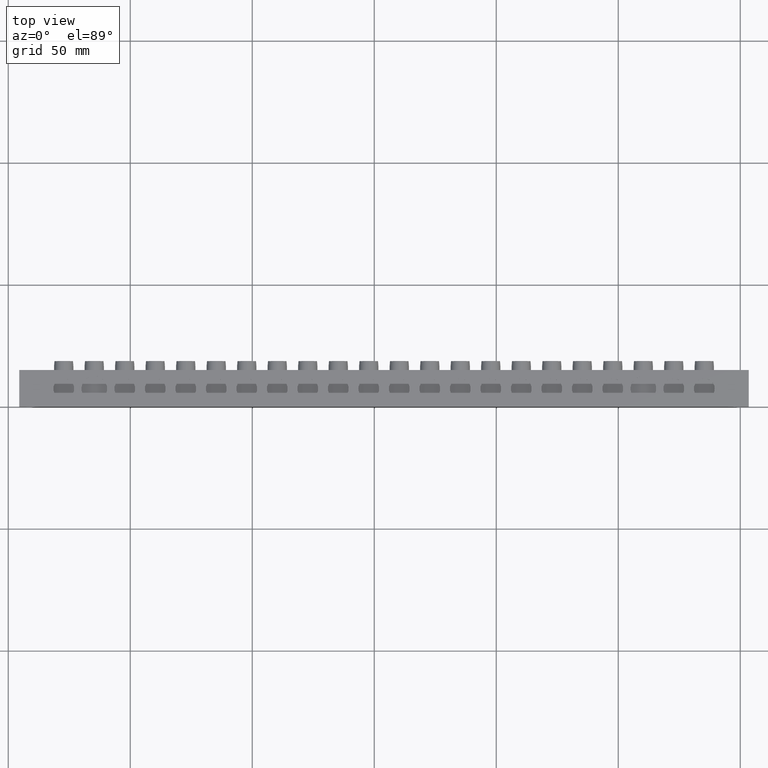
[diagram: clean part render]
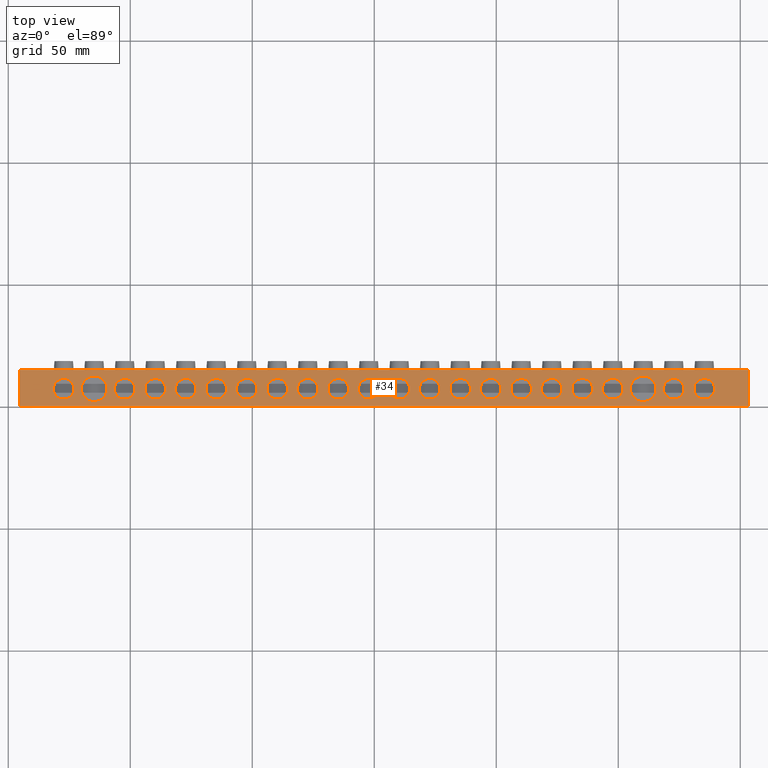
[diagram: same view with one face highlighted and labeled with its STEP entity id]
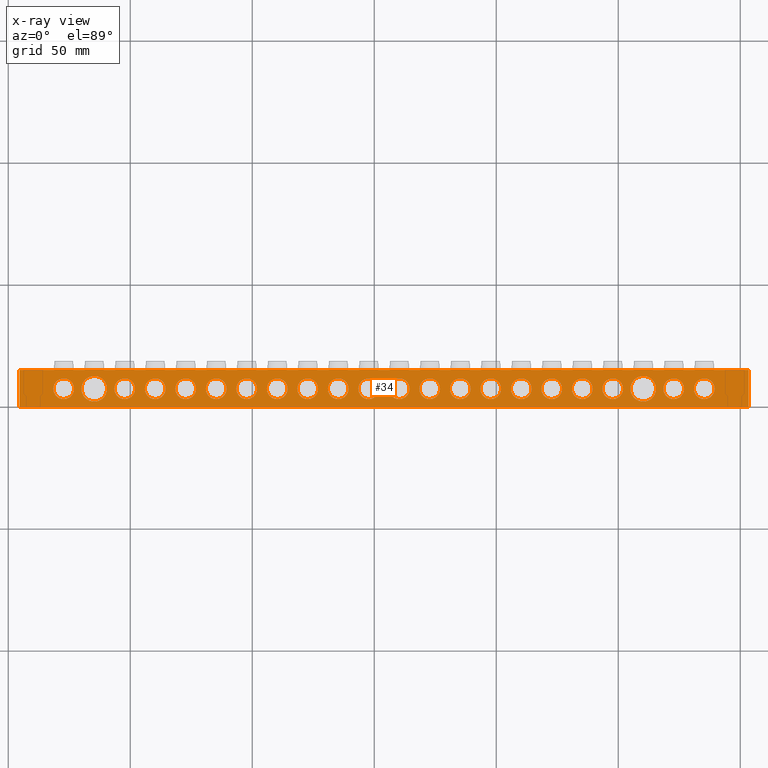
[diagram: x-ray of the same camera — body ghosted, the highlighted face saturated]
A machine part, top view. The second image highlights one B-rep face of the part: STEP entity #34.
The next image is the same camera in x-ray: the body ghosted, the highlighted face saturated — about 0% of this face is hidden behind the body in this view.
In plain terms, the highlighted planar face has unit normal (0, 0, -1).
Its self-contained STEP definition (entity closure, byte-faithful):
#34 = ADVANCED_FACE ( 'NONE', ( #3046, #3084, #3087, #3070, #3091, #3088, #3056, #3094, #3054, #3057, #3079, #3072, #3075, #3043, #3081, #3083, #3071, #3044, #3073, #3077, #3058, #3090, #3047 ), #3049, .F. ) ;
#108 = VERTEX_POINT ( 'NONE', #3121 ) ;
#130 = VERTEX_POINT ( 'NONE', #3153 ) ;
#135 = VERTEX_POINT ( 'NONE', #3137 ) ;
#136 = VERTEX_POINT ( 'NONE', #3112 ) ;
#165 = VERTEX_POINT ( 'NONE', #3124 ) ;
#169 = VERTEX_POINT ( 'NONE', #3100 ) ;
#173 = VERTEX_POINT ( 'NONE', #3104 ) ;
#174 = VERTEX_POINT ( 'NONE', #3139 ) ;
#177 = VERTEX_POINT ( 'NONE', #3106 ) ;
#181 = VERTEX_POINT ( 'NONE', #3125 ) ;
#182 = VERTEX_POINT ( 'NONE', #3103 ) ;
#183 = VERTEX_POINT ( 'NONE', #3127 ) ;
#184 = VERTEX_POINT ( 'NONE', #3131 ) ;
#188 = VERTEX_POINT ( 'NONE', #3115 ) ;
#192 = VERTEX_POINT ( 'NONE', #3107 ) ;
#195 = VERTEX_POINT ( 'NONE', #3132 ) ;
#204 = VERTEX_POINT ( 'NONE', #3133 ) ;
#207 = VERTEX_POINT ( 'NONE', #3194 ) ;
#212 = VERTEX_POINT ( 'NONE', #3178 ) ;
#214 = VERTEX_POINT ( 'NONE', #3186 ) ;
#219 = VERTEX_POINT ( 'NONE', #3205 ) ;
#221 = VERTEX_POINT ( 'NONE', #3196 ) ;
#550 = ORIENTED_EDGE ( 'NONE', *, *, #12116, .F. ) ;
#551 = ORIENTED_EDGE ( 'NONE', *, *, #12144, .F. ) ;
#552 = ORIENTED_EDGE ( 'NONE', *, *, #4015, .F. ) ;
#553 = ORIENTED_EDGE ( 'NONE', *, *, #12107, .F. ) ;
#555 = ORIENTED_EDGE ( 'NONE', *, *, #8539, .F. ) ;
#556 = ORIENTED_EDGE ( 'NONE', *, *, #12140, .F. ) ;
#557 = ORIENTED_EDGE ( 'NONE', *, *, #12118, .F. ) ;
#558 = ORIENTED_EDGE ( 'NONE', *, *, #8545, .F. ) ;
#559 = ORIENTED_EDGE ( 'NONE', *, *, #8568, .F. ) ;
#561 = ORIENTED_EDGE ( 'NONE', *, *, #3902, .F. ) ;
#563 = ORIENTED_EDGE ( 'NONE', *, *, #3934, .F. ) ;
#564 = ORIENTED_EDGE ( 'NONE', *, *, #12131, .F. ) ;
#565 = ORIENTED_EDGE ( 'NONE', *, *, #3994, .F. ) ;
#569 = ORIENTED_EDGE ( 'NONE', *, *, #4001, .F. ) ;
#570 = ORIENTED_EDGE ( 'NONE', *, *, #12110, .F. ) ;
#573 = ORIENTED_EDGE ( 'NONE', *, *, #3905, .F. ) ;
#574 = ORIENTED_EDGE ( 'NONE', *, *, #3911, .F. ) ;
#575 = ORIENTED_EDGE ( 'NONE', *, *, #3986, .F. ) ;
#576 = ORIENTED_EDGE ( 'NONE', *, *, #8540, .F. ) ;
#577 = ORIENTED_EDGE ( 'NONE', *, *, #12108, .F. ) ;
#579 = ORIENTED_EDGE ( 'NONE', *, *, #12124, .F. ) ;
#580 = ORIENTED_EDGE ( 'NONE', *, *, #3917, .F. ) ;
#582 = ORIENTED_EDGE ( 'NONE', *, *, #3981, .F. ) ;
#583 = ORIENTED_EDGE ( 'NONE', *, *, #12156, .F. ) ;
#584 = ORIENTED_EDGE ( 'NONE', *, *, #3896, .F. ) ;
#585 = ORIENTED_EDGE ( 'NONE', *, *, #8574, .F. ) ;
#586 = ORIENTED_EDGE ( 'NONE', *, *, #3995, .F. ) ;
#587 = ORIENTED_EDGE ( 'NONE', *, *, #8569, .F. ) ;
#588 = ORIENTED_EDGE ( 'NONE', *, *, #8531, .F. ) ;
#589 = ORIENTED_EDGE ( 'NONE', *, *, #8549, .F. ) ;
#591 = ORIENTED_EDGE ( 'NONE', *, *, #8553, .F. ) ;
#592 = ORIENTED_EDGE ( 'NONE', *, *, #12109, .F. ) ;
#594 = ORIENTED_EDGE ( 'NONE', *, *, #3969, .F. ) ;
#597 = ORIENTED_EDGE ( 'NONE', *, *, #3932, .F. ) ;
#598 = ORIENTED_EDGE ( 'NONE', *, *, #8571, .F. ) ;
#599 = ORIENTED_EDGE ( 'NONE', *, *, #3903, .F. ) ;
#600 = ORIENTED_EDGE ( 'NONE', *, *, #12127, .F. ) ;
#601 = ORIENTED_EDGE ( 'NONE', *, *, #3985, .F. ) ;
#602 = ORIENTED_EDGE ( 'NONE', *, *, #3912, .F. ) ;
#605 = ORIENTED_EDGE ( 'NONE', *, *, #8520, .F. ) ;
#606 = ORIENTED_EDGE ( 'NONE', *, *, #3915, .F. ) ;
#608 = ORIENTED_EDGE ( 'NONE', *, *, #12126, .F. ) ;
#609 = ORIENTED_EDGE ( 'NONE', *, *, #3956, .F. ) ;
#610 = ORIENTED_EDGE ( 'NONE', *, *, #12106, .F. ) ;
#611 = ORIENTED_EDGE ( 'NONE', *, *, #8528, .F. ) ;
#613 = ORIENTED_EDGE ( 'NONE', *, *, #3914, .F. ) ;
#631 = ORIENTED_EDGE ( 'NONE', *, *, #4014, .F. ) ;
#658 = ORIENTED_EDGE ( 'NONE', *, *, #4023, .F. ) ;
#1613 = AXIS2_PLACEMENT_3D ( 'NONE', #9318, #9326, #9323 ) ;
#1614 = AXIS2_PLACEMENT_3D ( 'NONE', #9322, #9308, #9297 ) ;
#1653 = CIRCLE ( 'NONE', #1613, 4.250000000000003600 ) ;
#1657 = CIRCLE ( 'NONE', #1614, 4.250000000000003600 ) ;
#1674 = CIRCLE ( 'NONE', #1709, 4.250000000000003600 ) ;
#1677 = AXIS2_PLACEMENT_3D ( 'NONE', #9390, #9391, #9380 ) ;
#1686 = CIRCLE ( 'NONE', #1711, 4.250000000000003600 ) ;
#1689 = CIRCLE ( 'NONE', #1692, 4.250000000000003600 ) ;
#1692 = AXIS2_PLACEMENT_3D ( 'NONE', #9373, #9353, #9363 ) ;
#1695 = AXIS2_PLACEMENT_3D ( 'NONE', #9412, #9384, #9414 ) ;
#1701 = CIRCLE ( 'NONE', #1677, 4.250000000000003600 ) ;
#1709 = AXIS2_PLACEMENT_3D ( 'NONE', #9361, #9347, #9348 ) ;
#1711 = AXIS2_PLACEMENT_3D ( 'NONE', #9376, #9338, #9364 ) ;
#1713 = CIRCLE ( 'NONE', #1726, 4.250000000000017800 ) ;
#1726 = AXIS2_PLACEMENT_3D ( 'NONE', #9394, #9404, #9398 ) ;
#1727 = CIRCLE ( 'NONE', #1695, 5.249999999999976900 ) ;
#1733 = AXIS2_PLACEMENT_3D ( 'NONE', #9479, #9486, #9487 ) ;
#1739 = CIRCLE ( 'NONE', #1740, 4.250000000000003600 ) ;
#1740 = AXIS2_PLACEMENT_3D ( 'NONE', #9493, #9468, #9476 ) ;
#1749 = AXIS2_PLACEMENT_3D ( 'NONE', #9478, #9471, #9483 ) ;
#1765 = CIRCLE ( 'NONE', #1749, 4.250000000000003600 ) ;
#1768 = CIRCLE ( 'NONE', #1733, 4.250000000000003600 ) ;
#1772 = CIRCLE ( 'NONE', #1777, 4.250000000000003600 ) ;
#1777 = AXIS2_PLACEMENT_3D ( 'NONE', #9482, #9481, #9475 ) ;
#1800 = AXIS2_PLACEMENT_3D ( 'NONE', #8694, #8686, #8687 ) ;
#1801 = CIRCLE ( 'NONE', #1819, 4.250000000000003600 ) ;
#1808 = AXIS2_PLACEMENT_3D ( 'NONE', #8688, #8675, #8663 ) ;
#1810 = AXIS2_PLACEMENT_3D ( 'NONE', #8673, #8670, #8681 ) ;
#1815 = VECTOR ( 'NONE', #8739, 1000.000000000000000 ) ;
#1819 = AXIS2_PLACEMENT_3D ( 'NONE', #8737, #8707, #8709 ) ;
#1822 = CIRCLE ( 'NONE', #1837, 4.250000000000032000 ) ;
#1824 = CIRCLE ( 'NONE', #1810, 4.250000000000003600 ) ;
#1827 = CIRCLE ( 'NONE', #1843, 5.249999999999997300 ) ;
#1830 = AXIS2_PLACEMENT_3D ( 'NONE', #8659, #8667, #8671 ) ;
#1833 = CIRCLE ( 'NONE', #1830, 4.250000000000003600 ) ;
#1837 = AXIS2_PLACEMENT_3D ( 'NONE', #8678, #8676, #8662 ) ;
#1840 = CIRCLE ( 'NONE', #1800, 4.250000000000003600 ) ;
#1842 = CIRCLE ( 'NONE', #1808, 4.250000000000003600 ) ;
#1843 = AXIS2_PLACEMENT_3D ( 'NONE', #8674, #8679, #8677 ) ;
#1845 = VECTOR ( 'NONE', #8661, 1000.000000000000000 ) ;
#1848 = VECTOR ( 'NONE', #8708, 1000.000000000000000 ) ;
#1849 = VECTOR ( 'NONE', #8701, 1000.000000000000000 ) ;
#1866 = CIRCLE ( 'NONE', #1874, 4.250000000000003600 ) ;
#1870 = AXIS2_PLACEMENT_3D ( 'NONE', #8744, #8750, #8745 ) ;
#1874 = AXIS2_PLACEMENT_3D ( 'NONE', #8823, #8794, #8791 ) ;
#1879 = CIRCLE ( 'NONE', #1905, 4.249999999999976000 ) ;
#1905 = AXIS2_PLACEMENT_3D ( 'NONE', #8768, #8782, #8762 ) ;
#1911 = CIRCLE ( 'NONE', #1870, 4.250000000000032000 ) ;
#2454 = VERTEX_POINT ( 'NONE', #13983 ) ;
#2502 = VERTEX_POINT ( 'NONE', #14015 ) ;
#2508 = VERTEX_POINT ( 'NONE', #14023 ) ;
#2515 = VERTEX_POINT ( 'NONE', #14070 ) ;
#2525 = VERTEX_POINT ( 'NONE', #14066 ) ;
#2539 = VERTEX_POINT ( 'NONE', #14041 ) ;
#2546 = VERTEX_POINT ( 'NONE', #14056 ) ;
#2553 = VERTEX_POINT ( 'NONE', #14085 ) ;
#2554 = VERTEX_POINT ( 'NONE', #14071 ) ;
#2555 = VERTEX_POINT ( 'NONE', #14077 ) ;
#2559 = VERTEX_POINT ( 'NONE', #14030 ) ;
#2828 = VERTEX_POINT ( 'NONE', #14101 ) ;
#2849 = VERTEX_POINT ( 'NONE', #14194 ) ;
#2850 = VERTEX_POINT ( 'NONE', #14090 ) ;
#2851 = VERTEX_POINT ( 'NONE', #14201 ) ;
#2853 = VERTEX_POINT ( 'NONE', #14115 ) ;
#2856 = VERTEX_POINT ( 'NONE', #14198 ) ;
#2858 = VERTEX_POINT ( 'NONE', #14186 ) ;
#2862 = VERTEX_POINT ( 'NONE', #14163 ) ;
#2865 = VERTEX_POINT ( 'NONE', #14177 ) ;
#2866 = VERTEX_POINT ( 'NONE', #14179 ) ;
#2867 = VERTEX_POINT ( 'NONE', #14174 ) ;
#3043 = FACE_BOUND ( 'NONE', #13182, .T. ) ;
#3044 = FACE_BOUND ( 'NONE', #13183, .T. ) ;
#3045 = DIRECTION ( 'NONE',  ( -1.000000000000000000, 0.0000000000000000000, -0.0000000000000000000 ) ) ;
#3046 = FACE_BOUND ( 'NONE', #13148, .T. ) ;
#3047 = FACE_OUTER_BOUND ( 'NONE', #13219, .T. ) ;
#3049 = PLANE ( 'NONE',  #7045 ) ;
#3054 = FACE_BOUND ( 'NONE', #13217, .T. ) ;
#3056 = FACE_BOUND ( 'NONE', #13137, .T. ) ;
#3057 = FACE_BOUND ( 'NONE', #13186, .T. ) ;
#3058 = FACE_BOUND ( 'NONE', #13189, .T. ) ;
#3070 = FACE_BOUND ( 'NONE', #13142, .T. ) ;
#3071 = FACE_BOUND ( 'NONE', #13200, .T. ) ;
#3072 = FACE_BOUND ( 'NONE', #13180, .T. ) ;
#3073 = FACE_BOUND ( 'NONE', #13190, .T. ) ;
#3075 = FACE_BOUND ( 'NONE', #13204, .T. ) ;
#3077 = FACE_BOUND ( 'NONE', #13198, .T. ) ;
#3079 = FACE_BOUND ( 'NONE', #13213, .T. ) ;
#3081 = FACE_BOUND ( 'NONE', #13208, .T. ) ;
#3083 = FACE_BOUND ( 'NONE', #13224, .T. ) ;
#3084 = FACE_BOUND ( 'NONE', #13133, .T. ) ;
#3085 = CARTESIAN_POINT ( 'NONE',  ( 0.0000000000000000000, 15.00000000000000000, 0.0000000000000000000 ) ) ;
#3087 = FACE_BOUND ( 'NONE', #13121, .T. ) ;
#3088 = FACE_BOUND ( 'NONE', #13165, .T. ) ;
#3090 = FACE_BOUND ( 'NONE', #13184, .T. ) ;
#3091 = FACE_BOUND ( 'NONE', #13130, .T. ) ;
#3092 = DIRECTION ( 'NONE',  ( 0.0000000000000000000, 0.0000000000000000000, -1.000000000000000000 ) ) ;
#3094 = FACE_BOUND ( 'NONE', #13145, .T. ) ;
#3100 = CARTESIAN_POINT ( 'NONE',  ( 64.49999999999994300, 7.299999999999939400, 0.0000000000000000000 ) ) ;
#3103 = CARTESIAN_POINT ( 'NONE',  ( 139.4999999999999400, 7.299999999999966100, 0.0000000000000000000 ) ) ;
#3104 = CARTESIAN_POINT ( 'NONE',  ( 18.49999999999999600, 7.299999999999999800, 0.0000000000000000000 ) ) ;
#3106 = CARTESIAN_POINT ( 'NONE',  ( 126.9999999999999700, 7.299999999999961600, 0.0000000000000000000 ) ) ;
#3107 = CARTESIAN_POINT ( 'NONE',  ( 101.9999999999999600, 7.299999999999954500, 0.0000000000000000000 ) ) ;
#3112 = CARTESIAN_POINT ( 'NONE',  ( 43.49999999999995700, 7.299999999999935900, 0.0000000000000000000 ) ) ;
#3115 = CARTESIAN_POINT ( 'NONE',  ( 155.9999999999999400, 7.299999999999975800, 0.0000000000000000000 ) ) ;
#3121 = CARTESIAN_POINT ( 'NONE',  ( 89.49999999999997200, 7.299999999999950100, 0.0000000000000000000 ) ) ;
#3124 = CARTESIAN_POINT ( 'NONE',  ( 105.9999999999999600, 7.299999999999958100, 0.0000000000000000000 ) ) ;
#3125 = CARTESIAN_POINT ( 'NONE',  ( 243.4999999999999400, 7.300000000000003400, 0.0000000000000000000 ) ) ;
#3127 = CARTESIAN_POINT ( 'NONE',  ( 164.4999999999999400, 7.299999999999975000, 0.0000000000000000000 ) ) ;
#3131 = CARTESIAN_POINT ( 'NONE',  ( 143.4999999999999400, 7.299999999999971400, 0.0000000000000000000 ) ) ;
#3132 = CARTESIAN_POINT ( 'NONE',  ( 80.99999999999995700, 7.299999999999951000, 0.0000000000000000000 ) ) ;
#3133 = CARTESIAN_POINT ( 'NONE',  ( 68.49999999999994300, 7.299999999999944800, 0.0000000000000000000 ) ) ;
#3137 = CARTESIAN_POINT ( 'NONE',  ( 55.99999999999993600, 7.299999999999940300, 0.0000000000000000000 ) ) ;
#3139 = CARTESIAN_POINT ( 'NONE',  ( 93.49999999999994300, 7.299999999999954500, 0.0000000000000000000 ) ) ;
#3153 = CARTESIAN_POINT ( 'NONE',  ( 114.4999999999999600, 7.299999999999957200, 0.0000000000000000000 ) ) ;
#3178 = CARTESIAN_POINT ( 'NONE',  ( 51.99999999999996400, 7.299999999999935000, 0.0000000000000000000 ) ) ;
#3186 = CARTESIAN_POINT ( 'NONE',  ( 118.4999999999999400, 7.299999999999962500, 0.0000000000000000000 ) ) ;
#3194 = CARTESIAN_POINT ( 'NONE',  ( 76.99999999999995700, 7.299999999999943900, 0.0000000000000000000 ) ) ;
#3196 = CARTESIAN_POINT ( 'NONE',  ( 151.9999999999999400, 7.299999999999970500, 0.0000000000000000000 ) ) ;
#3205 = CARTESIAN_POINT ( 'NONE',  ( 130.9999999999999400, 7.299999999999967000, 0.0000000000000000000 ) ) ;
#3896 = EDGE_CURVE ( 'NONE', #165, #130, #6566, .T. ) ;
#3902 = EDGE_CURVE ( 'NONE', #188, #183, #6612, .T. ) ;
#3903 = EDGE_CURVE ( 'NONE', #2856, #2849, #6642, .T. ) ;
#3905 = EDGE_CURVE ( 'NONE', #181, #2862, #6626, .T. ) ;
#3911 = EDGE_CURVE ( 'NONE', #219, #182, #6581, .T. ) ;
#3912 = EDGE_CURVE ( 'NONE', #135, #169, #6607, .T. ) ;
#3914 = EDGE_CURVE ( 'NONE', #136, #212, #6640, .T. ) ;
#3915 = EDGE_CURVE ( 'NONE', #204, #207, #6590, .T. ) ;
#3917 = EDGE_CURVE ( 'NONE', #214, #177, #6638, .T. ) ;
#3932 = EDGE_CURVE ( 'NONE', #2850, #2865, #6586, .T. ) ;
#3934 = EDGE_CURVE ( 'NONE', #195, #108, #6618, .T. ) ;
#3956 = EDGE_CURVE ( 'NONE', #174, #192, #6698, .T. ) ;
#3969 = EDGE_CURVE ( 'NONE', #2851, #2858, #6689, .T. ) ;
#3981 = EDGE_CURVE ( 'NONE', #2502, #2554, #6675, .T. ) ;
#3985 = EDGE_CURVE ( 'NONE', #2559, #2508, #6670, .T. ) ;
#3986 = EDGE_CURVE ( 'NONE', #2525, #2454, #6676, .T. ) ;
#3994 = EDGE_CURVE ( 'NONE', #184, #221, #6735, .T. ) ;
#3995 = EDGE_CURVE ( 'NONE', #173, #2553, #6739, .T. ) ;
#4001 = EDGE_CURVE ( 'NONE', #2515, #2546, #6705, .T. ) ;
#4014 = EDGE_CURVE ( 'NONE', #2828, #2866, #6711, .T. ) ;
#4015 = EDGE_CURVE ( 'NONE', #2867, #2853, #6724, .T. ) ;
#4023 = EDGE_CURVE ( 'NONE', #2539, #2555, #6712, .T. ) ;
#5500 = DIRECTION ( 'NONE',  ( 0.0000000000000000000, 0.0000000000000000000, 1.000000000000000000 ) ) ;
#6554 = AXIS2_PLACEMENT_3D ( 'NONE', #14696, #14699, #14704 ) ;
#6566 = CIRCLE ( 'NONE', #6554, 4.250000000000003600 ) ;
#6581 = CIRCLE ( 'NONE', #6633, 4.250000000000003600 ) ;
#6584 = AXIS2_PLACEMENT_3D ( 'NONE', #10758, #5500, #7532 ) ;
#6586 = CIRCLE ( 'NONE', #6584, 4.250000000000003600 ) ;
#6590 = CIRCLE ( 'NONE', #6635, 4.250000000000003600 ) ;
#6598 = AXIS2_PLACEMENT_3D ( 'NONE', #8649, #8650, #8652 ) ;
#6599 = AXIS2_PLACEMENT_3D ( 'NONE', #8586, #8583, #8589 ) ;
#6607 = CIRCLE ( 'NONE', #6598, 4.250000000000003600 ) ;
#6612 = CIRCLE ( 'NONE', #6643, 4.250000000000003600 ) ;
#6616 = AXIS2_PLACEMENT_3D ( 'NONE', #8575, #8578, #8579 ) ;
#6618 = CIRCLE ( 'NONE', #6624, 4.250000000000003600 ) ;
#6619 = AXIS2_PLACEMENT_3D ( 'NONE', #8637, #8617, #8620 ) ;
#6624 = AXIS2_PLACEMENT_3D ( 'NONE', #7554, #7543, #7509 ) ;
#6625 = AXIS2_PLACEMENT_3D ( 'NONE', #8635, #8640, #8630 ) ;
#6626 = CIRCLE ( 'NONE', #6625, 4.250000000000032000 ) ;
#6633 = AXIS2_PLACEMENT_3D ( 'NONE', #8656, #8657, #8648 ) ;
#6635 = AXIS2_PLACEMENT_3D ( 'NONE', #8580, #8577, #8581 ) ;
#6638 = CIRCLE ( 'NONE', #6599, 4.250000000000017800 ) ;
#6640 = CIRCLE ( 'NONE', #6616, 4.250000000000003600 ) ;
#6642 = CIRCLE ( 'NONE', #6619, 4.250000000000003600 ) ;
#6643 = AXIS2_PLACEMENT_3D ( 'NONE', #8628, #8641, #8624 ) ;
#6659 = AXIS2_PLACEMENT_3D ( 'NONE', #7660, #7673, #7654 ) ;
#6662 = AXIS2_PLACEMENT_3D ( 'NONE', #7566, #7558, #7587 ) ;
#6670 = CIRCLE ( 'NONE', #6671, 4.250000000000032000 ) ;
#6671 = AXIS2_PLACEMENT_3D ( 'NONE', #7646, #7657, #7641 ) ;
#6675 = CIRCLE ( 'NONE', #6659, 4.250000000000003600 ) ;
#6676 = CIRCLE ( 'NONE', #6733, 5.249999999999976900 ) ;
#6689 = CIRCLE ( 'NONE', #6692, 4.250000000000003600 ) ;
#6692 = AXIS2_PLACEMENT_3D ( 'NONE', #7630, #7600, #7624 ) ;
#6698 = CIRCLE ( 'NONE', #6662, 4.250000000000003600 ) ;
#6703 = AXIS2_PLACEMENT_3D ( 'NONE', #7689, #7696, #7701 ) ;
#6705 = CIRCLE ( 'NONE', #6737, 5.249999999999997300 ) ;
#6711 = CIRCLE ( 'NONE', #6723, 4.250000000000003600 ) ;
#6712 = CIRCLE ( 'NONE', #6718, 4.249999999999976000 ) ;
#6715 = AXIS2_PLACEMENT_3D ( 'NONE', #7798, #7778, #7800 ) ;
#6718 = AXIS2_PLACEMENT_3D ( 'NONE', #7772, #7805, #7796 ) ;
#6723 = AXIS2_PLACEMENT_3D ( 'NONE', #7783, #7773, #7795 ) ;
#6724 = CIRCLE ( 'NONE', #6715, 4.250000000000003600 ) ;
#6730 = AXIS2_PLACEMENT_3D ( 'NONE', #7684, #7699, #7719 ) ;
#6733 = AXIS2_PLACEMENT_3D ( 'NONE', #7640, #7648, #7650 ) ;
#6735 = CIRCLE ( 'NONE', #6703, 4.250000000000003600 ) ;
#6737 = AXIS2_PLACEMENT_3D ( 'NONE', #7728, #7742, #7760 ) ;
#6739 = CIRCLE ( 'NONE', #6730, 4.250000000000003600 ) ;
#7045 = AXIS2_PLACEMENT_3D ( 'NONE', #3085, #3092, #3045 ) ;
#7509 = DIRECTION ( 'NONE',  ( 1.000000000000000000, 0.0000000000000000000, 0.0000000000000000000 ) ) ;
#7532 = DIRECTION ( 'NONE',  ( 1.000000000000000000, 0.0000000000000000000, 0.0000000000000000000 ) ) ;
#7543 = DIRECTION ( 'NONE',  ( 0.0000000000000000000, 0.0000000000000000000, 1.000000000000000000 ) ) ;
#7554 = CARTESIAN_POINT ( 'NONE',  ( 85.24999999999997200, 7.299999999999950100, 0.0000000000000000000 ) ) ;
#7558 = DIRECTION ( 'NONE',  ( 0.0000000000000000000, 0.0000000000000000000, 1.000000000000000000 ) ) ;
#7566 = CARTESIAN_POINT ( 'NONE',  ( 97.74999999999994300, 7.299999999999954500, 0.0000000000000000000 ) ) ;
#7587 = DIRECTION ( 'NONE',  ( 1.000000000000000000, 0.0000000000000000000, 0.0000000000000000000 ) ) ;
#7600 = DIRECTION ( 'NONE',  ( 0.0000000000000000000, 0.0000000000000000000, 1.000000000000000000 ) ) ;
#7624 = DIRECTION ( 'NONE',  ( 1.000000000000000000, 0.0000000000000000000, 0.0000000000000000000 ) ) ;
#7630 = CARTESIAN_POINT ( 'NONE',  ( 210.2499999999999700, 7.299999999999992700, 0.0000000000000000000 ) ) ;
#7640 = CARTESIAN_POINT ( 'NONE',  ( 260.2500000000000000, 7.299999999999998900, 0.0000000000000000000 ) ) ;
#7641 = DIRECTION ( 'NONE',  ( 1.000000000000000000, 0.0000000000000000000, 0.0000000000000000000 ) ) ;
#7646 = CARTESIAN_POINT ( 'NONE',  ( 285.2500000000000000, 7.299999999999998900, 0.0000000000000000000 ) ) ;
#7648 = DIRECTION ( 'NONE',  ( -0.0000000000000000000, -0.0000000000000000000, 1.000000000000000000 ) ) ;
#7650 = DIRECTION ( 'NONE',  ( -1.000000000000000000, 0.0000000000000000000, 0.0000000000000000000 ) ) ;
#7654 = DIRECTION ( 'NONE',  ( 1.000000000000000000, 0.0000000000000000000, 0.0000000000000000000 ) ) ;
#7657 = DIRECTION ( 'NONE',  ( 0.0000000000000000000, 0.0000000000000000000, 1.000000000000000000 ) ) ;
#7660 = CARTESIAN_POINT ( 'NONE',  ( 235.2500000000000300, 7.300000000000001600, 0.0000000000000000000 ) ) ;
#7673 = DIRECTION ( 'NONE',  ( 0.0000000000000000000, 0.0000000000000000000, 1.000000000000000000 ) ) ;
#7684 = CARTESIAN_POINT ( 'NONE',  ( 22.75000000000000000, 7.299999999999998900, 0.0000000000000000000 ) ) ;
#7689 = CARTESIAN_POINT ( 'NONE',  ( 147.7499999999999400, 7.299999999999970500, 0.0000000000000000000 ) ) ;
#7696 = DIRECTION ( 'NONE',  ( 0.0000000000000000000, 0.0000000000000000000, 1.000000000000000000 ) ) ;
#7699 = DIRECTION ( 'NONE',  ( 0.0000000000000000000, 0.0000000000000000000, 1.000000000000000000 ) ) ;
#7701 = DIRECTION ( 'NONE',  ( 1.000000000000000000, 0.0000000000000000000, 0.0000000000000000000 ) ) ;
#7719 = DIRECTION ( 'NONE',  ( 1.000000000000000000, 0.0000000000000000000, 0.0000000000000000000 ) ) ;
#7728 = CARTESIAN_POINT ( 'NONE',  ( 35.25000000000000000, 7.299999999999998900, 0.0000000000000000000 ) ) ;
#7742 = DIRECTION ( 'NONE',  ( 0.0000000000000000000, 0.0000000000000000000, 1.000000000000000000 ) ) ;
#7760 = DIRECTION ( 'NONE',  ( 1.000000000000000000, 0.0000000000000000000, 0.0000000000000000000 ) ) ;
#7772 = CARTESIAN_POINT ( 'NONE',  ( 272.7500000000000000, 7.299999999999998900, 0.0000000000000000000 ) ) ;
#7773 = DIRECTION ( 'NONE',  ( 0.0000000000000000000, 0.0000000000000000000, 1.000000000000000000 ) ) ;
#7778 = DIRECTION ( 'NONE',  ( 0.0000000000000000000, 0.0000000000000000000, 1.000000000000000000 ) ) ;
#7783 = CARTESIAN_POINT ( 'NONE',  ( 172.7500000000000300, 7.299999999999979400, 0.0000000000000000000 ) ) ;
#7795 = DIRECTION ( 'NONE',  ( 1.000000000000000000, 0.0000000000000000000, 0.0000000000000000000 ) ) ;
#7796 = DIRECTION ( 'NONE',  ( -1.000000000000000000, 0.0000000000000000000, 0.0000000000000000000 ) ) ;
#7798 = CARTESIAN_POINT ( 'NONE',  ( 222.7499999999999400, 7.299999999999997200, 0.0000000000000000000 ) ) ;
#7800 = DIRECTION ( 'NONE',  ( 1.000000000000000000, 0.0000000000000000000, 0.0000000000000000000 ) ) ;
#7805 = DIRECTION ( 'NONE',  ( -0.0000000000000000000, -0.0000000000000000000, 1.000000000000000000 ) ) ;
#8520 = EDGE_CURVE ( 'NONE', #130, #165, #1653, .T. ) ;
#8528 = EDGE_CURVE ( 'NONE', #212, #136, #1657, .T. ) ;
#8531 = EDGE_CURVE ( 'NONE', #108, #195, #1674, .T. ) ;
#8539 = EDGE_CURVE ( 'NONE', #192, #174, #1689, .T. ) ;
#8540 = EDGE_CURVE ( 'NONE', #182, #219, #1686, .T. ) ;
#8545 = EDGE_CURVE ( 'NONE', #2865, #2850, #1701, .T. ) ;
#8549 = EDGE_CURVE ( 'NONE', #177, #214, #1713, .T. ) ;
#8553 = EDGE_CURVE ( 'NONE', #2454, #2525, #1727, .T. ) ;
#8568 = EDGE_CURVE ( 'NONE', #207, #204, #1768, .T. ) ;
#8569 = EDGE_CURVE ( 'NONE', #2853, #2867, #1772, .T. ) ;
#8571 = EDGE_CURVE ( 'NONE', #2554, #2502, #1739, .T. ) ;
#8574 = EDGE_CURVE ( 'NONE', #2849, #2856, #1765, .T. ) ;
#8575 = CARTESIAN_POINT ( 'NONE',  ( 47.74999999999995700, 7.299999999999935000, 0.0000000000000000000 ) ) ;
#8577 = DIRECTION ( 'NONE',  ( 0.0000000000000000000, 0.0000000000000000000, 1.000000000000000000 ) ) ;
#8578 = DIRECTION ( 'NONE',  ( 0.0000000000000000000, 0.0000000000000000000, 1.000000000000000000 ) ) ;
#8579 = DIRECTION ( 'NONE',  ( 1.000000000000000000, 0.0000000000000000000, 0.0000000000000000000 ) ) ;
#8580 = CARTESIAN_POINT ( 'NONE',  ( 72.74999999999995700, 7.299999999999943900, 0.0000000000000000000 ) ) ;
#8581 = DIRECTION ( 'NONE',  ( 1.000000000000000000, 0.0000000000000000000, 0.0000000000000000000 ) ) ;
#8583 = DIRECTION ( 'NONE',  ( 0.0000000000000000000, 0.0000000000000000000, 1.000000000000000000 ) ) ;
#8586 = CARTESIAN_POINT ( 'NONE',  ( 122.7499999999999600, 7.299999999999961600, 0.0000000000000000000 ) ) ;
#8589 = DIRECTION ( 'NONE',  ( 1.000000000000000000, 0.0000000000000000000, 0.0000000000000000000 ) ) ;
#8617 = DIRECTION ( 'NONE',  ( 0.0000000000000000000, 0.0000000000000000000, 1.000000000000000000 ) ) ;
#8620 = DIRECTION ( 'NONE',  ( 1.000000000000000000, 0.0000000000000000000, 0.0000000000000000000 ) ) ;
#8624 = DIRECTION ( 'NONE',  ( 1.000000000000000000, 0.0000000000000000000, 0.0000000000000000000 ) ) ;
#8628 = CARTESIAN_POINT ( 'NONE',  ( 160.2499999999999400, 7.299999999999975000, 0.0000000000000000000 ) ) ;
#8630 = DIRECTION ( 'NONE',  ( 1.000000000000000000, 0.0000000000000000000, 0.0000000000000000000 ) ) ;
#8635 = CARTESIAN_POINT ( 'NONE',  ( 247.7499999999999700, 7.300000000000002500, 0.0000000000000000000 ) ) ;
#8637 = CARTESIAN_POINT ( 'NONE',  ( 185.2499999999999700, 7.299999999999983800, 0.0000000000000000000 ) ) ;
#8640 = DIRECTION ( 'NONE',  ( 0.0000000000000000000, 0.0000000000000000000, 1.000000000000000000 ) ) ;
#8641 = DIRECTION ( 'NONE',  ( 0.0000000000000000000, 0.0000000000000000000, 1.000000000000000000 ) ) ;
#8648 = DIRECTION ( 'NONE',  ( 1.000000000000000000, 0.0000000000000000000, 0.0000000000000000000 ) ) ;
#8649 = CARTESIAN_POINT ( 'NONE',  ( 60.24999999999994300, 7.299999999999939400, 0.0000000000000000000 ) ) ;
#8650 = DIRECTION ( 'NONE',  ( 0.0000000000000000000, 0.0000000000000000000, 1.000000000000000000 ) ) ;
#8652 = DIRECTION ( 'NONE',  ( 1.000000000000000000, 0.0000000000000000000, 0.0000000000000000000 ) ) ;
#8656 = CARTESIAN_POINT ( 'NONE',  ( 135.2499999999999400, 7.299999999999966100, 0.0000000000000000000 ) ) ;
#8657 = DIRECTION ( 'NONE',  ( 0.0000000000000000000, 0.0000000000000000000, 1.000000000000000000 ) ) ;
#8659 = CARTESIAN_POINT ( 'NONE',  ( 147.7499999999999400, 7.299999999999970500, 0.0000000000000000000 ) ) ;
#8661 = DIRECTION ( 'NONE',  ( 1.000000000000000000, -0.0000000000000000000, 0.0000000000000000000 ) ) ;
#8662 = DIRECTION ( 'NONE',  ( 1.000000000000000000, 0.0000000000000000000, 0.0000000000000000000 ) ) ;
#8663 = DIRECTION ( 'NONE',  ( 1.000000000000000000, 0.0000000000000000000, 0.0000000000000000000 ) ) ;
#8667 = DIRECTION ( 'NONE',  ( 0.0000000000000000000, 0.0000000000000000000, 1.000000000000000000 ) ) ;
#8670 = DIRECTION ( 'NONE',  ( 0.0000000000000000000, 0.0000000000000000000, 1.000000000000000000 ) ) ;
#8671 = DIRECTION ( 'NONE',  ( 1.000000000000000000, 0.0000000000000000000, 0.0000000000000000000 ) ) ;
#8673 = CARTESIAN_POINT ( 'NONE',  ( 210.2499999999999700, 7.299999999999992700, 0.0000000000000000000 ) ) ;
#8674 = CARTESIAN_POINT ( 'NONE',  ( 35.25000000000000000, 7.299999999999998900, 0.0000000000000000000 ) ) ;
#8675 = DIRECTION ( 'NONE',  ( 0.0000000000000000000, 0.0000000000000000000, 1.000000000000000000 ) ) ;
#8676 = DIRECTION ( 'NONE',  ( 0.0000000000000000000, 0.0000000000000000000, 1.000000000000000000 ) ) ;
#8677 = DIRECTION ( 'NONE',  ( 1.000000000000000000, 0.0000000000000000000, 0.0000000000000000000 ) ) ;
#8678 = CARTESIAN_POINT ( 'NONE',  ( 247.7499999999999700, 7.300000000000002500, 0.0000000000000000000 ) ) ;
#8679 = DIRECTION ( 'NONE',  ( 0.0000000000000000000, 0.0000000000000000000, 1.000000000000000000 ) ) ;
#8681 = DIRECTION ( 'NONE',  ( 1.000000000000000000, 0.0000000000000000000, 0.0000000000000000000 ) ) ;
#8686 = DIRECTION ( 'NONE',  ( 0.0000000000000000000, 0.0000000000000000000, 1.000000000000000000 ) ) ;
#8687 = DIRECTION ( 'NONE',  ( 1.000000000000000000, 0.0000000000000000000, 0.0000000000000000000 ) ) ;
#8688 = CARTESIAN_POINT ( 'NONE',  ( 60.24999999999994300, 7.299999999999939400, 0.0000000000000000000 ) ) ;
#8694 = CARTESIAN_POINT ( 'NONE',  ( 22.75000000000000000, 7.299999999999998900, 0.0000000000000000000 ) ) ;
#8701 = DIRECTION ( 'NONE',  ( -0.0000000000000000000, -1.000000000000000000, -0.0000000000000000000 ) ) ;
#8707 = DIRECTION ( 'NONE',  ( 0.0000000000000000000, 0.0000000000000000000, 1.000000000000000000 ) ) ;
#8708 = DIRECTION ( 'NONE',  ( 0.0000000000000000000, 1.000000000000000000, 0.0000000000000000000 ) ) ;
#8709 = DIRECTION ( 'NONE',  ( 1.000000000000000000, 0.0000000000000000000, 0.0000000000000000000 ) ) ;
#8718 = LINE ( 'NONE', #8733, #1815 ) ;
#8719 = CARTESIAN_POINT ( 'NONE',  ( 4.500000000000001800, 15.00000000000000000, 0.0000000000000000000 ) ) ;
#8728 = LINE ( 'NONE', #8719, #1848 ) ;
#8729 = CARTESIAN_POINT ( 'NONE',  ( 303.5000000000000000, 15.00000000000000000, 0.0000000000000000000 ) ) ;
#8733 = CARTESIAN_POINT ( 'NONE',  ( 0.0000000000000000000, 0.0000000000000000000, 0.0000000000000000000 ) ) ;
#8737 = CARTESIAN_POINT ( 'NONE',  ( 160.2499999999999400, 7.299999999999975000, 0.0000000000000000000 ) ) ;
#8739 = DIRECTION ( 'NONE',  ( -1.000000000000000000, 0.0000000000000000000, -0.0000000000000000000 ) ) ;
#8743 = LINE ( 'NONE', #8729, #1849 ) ;
#8744 = CARTESIAN_POINT ( 'NONE',  ( 285.2500000000000000, 7.299999999999998900, 0.0000000000000000000 ) ) ;
#8745 = DIRECTION ( 'NONE',  ( 1.000000000000000000, 0.0000000000000000000, 0.0000000000000000000 ) ) ;
#8750 = DIRECTION ( 'NONE',  ( 0.0000000000000000000, 0.0000000000000000000, 1.000000000000000000 ) ) ;
#8762 = DIRECTION ( 'NONE',  ( -1.000000000000000000, 0.0000000000000000000, 0.0000000000000000000 ) ) ;
#8768 = CARTESIAN_POINT ( 'NONE',  ( 272.7500000000000000, 7.299999999999998900, 0.0000000000000000000 ) ) ;
#8782 = DIRECTION ( 'NONE',  ( -0.0000000000000000000, -0.0000000000000000000, 1.000000000000000000 ) ) ;
#8791 = DIRECTION ( 'NONE',  ( 1.000000000000000000, 0.0000000000000000000, 0.0000000000000000000 ) ) ;
#8794 = DIRECTION ( 'NONE',  ( 0.0000000000000000000, 0.0000000000000000000, 1.000000000000000000 ) ) ;
#8823 = CARTESIAN_POINT ( 'NONE',  ( 172.7500000000000300, 7.299999999999979400, 0.0000000000000000000 ) ) ;
#8965 = CARTESIAN_POINT ( 'NONE',  ( 303.5000000000000000, 0.0000000000000000000, 0.0000000000000000000 ) ) ;
#9037 = CARTESIAN_POINT ( 'NONE',  ( 4.500000000000001800, 15.00000000000000000, 0.0000000000000000000 ) ) ;
#9041 = CARTESIAN_POINT ( 'NONE',  ( 4.500000000000001800, 0.0000000000000000000, 0.0000000000000000000 ) ) ;
#9080 = CARTESIAN_POINT ( 'NONE',  ( 303.5000000000000000, 15.00000000000000000, 0.0000000000000000000 ) ) ;
#9297 = DIRECTION ( 'NONE',  ( 1.000000000000000000, 0.0000000000000000000, 0.0000000000000000000 ) ) ;
#9308 = DIRECTION ( 'NONE',  ( 0.0000000000000000000, 0.0000000000000000000, 1.000000000000000000 ) ) ;
#9318 = CARTESIAN_POINT ( 'NONE',  ( 110.2499999999999600, 7.299999999999957200, 0.0000000000000000000 ) ) ;
#9322 = CARTESIAN_POINT ( 'NONE',  ( 47.74999999999995700, 7.299999999999935000, 0.0000000000000000000 ) ) ;
#9323 = DIRECTION ( 'NONE',  ( 1.000000000000000000, 0.0000000000000000000, 0.0000000000000000000 ) ) ;
#9326 = DIRECTION ( 'NONE',  ( 0.0000000000000000000, 0.0000000000000000000, 1.000000000000000000 ) ) ;
#9338 = DIRECTION ( 'NONE',  ( 0.0000000000000000000, 0.0000000000000000000, 1.000000000000000000 ) ) ;
#9347 = DIRECTION ( 'NONE',  ( 0.0000000000000000000, 0.0000000000000000000, 1.000000000000000000 ) ) ;
#9348 = DIRECTION ( 'NONE',  ( 1.000000000000000000, 0.0000000000000000000, 0.0000000000000000000 ) ) ;
#9353 = DIRECTION ( 'NONE',  ( 0.0000000000000000000, 0.0000000000000000000, 1.000000000000000000 ) ) ;
#9361 = CARTESIAN_POINT ( 'NONE',  ( 85.24999999999997200, 7.299999999999950100, 0.0000000000000000000 ) ) ;
#9363 = DIRECTION ( 'NONE',  ( 1.000000000000000000, 0.0000000000000000000, 0.0000000000000000000 ) ) ;
#9364 = DIRECTION ( 'NONE',  ( 1.000000000000000000, 0.0000000000000000000, 0.0000000000000000000 ) ) ;
#9373 = CARTESIAN_POINT ( 'NONE',  ( 97.74999999999994300, 7.299999999999954500, 0.0000000000000000000 ) ) ;
#9376 = CARTESIAN_POINT ( 'NONE',  ( 135.2499999999999400, 7.299999999999966100, 0.0000000000000000000 ) ) ;
#9380 = DIRECTION ( 'NONE',  ( 1.000000000000000000, 0.0000000000000000000, 0.0000000000000000000 ) ) ;
#9384 = DIRECTION ( 'NONE',  ( -0.0000000000000000000, -0.0000000000000000000, 1.000000000000000000 ) ) ;
#9390 = CARTESIAN_POINT ( 'NONE',  ( 197.7499999999999400, 7.299999999999990900, 0.0000000000000000000 ) ) ;
#9391 = DIRECTION ( 'NONE',  ( 0.0000000000000000000, 0.0000000000000000000, 1.000000000000000000 ) ) ;
#9394 = CARTESIAN_POINT ( 'NONE',  ( 122.7499999999999600, 7.299999999999961600, 0.0000000000000000000 ) ) ;
#9398 = DIRECTION ( 'NONE',  ( 1.000000000000000000, 0.0000000000000000000, 0.0000000000000000000 ) ) ;
#9404 = DIRECTION ( 'NONE',  ( 0.0000000000000000000, 0.0000000000000000000, 1.000000000000000000 ) ) ;
#9412 = CARTESIAN_POINT ( 'NONE',  ( 260.2500000000000000, 7.299999999999998900, 0.0000000000000000000 ) ) ;
#9414 = DIRECTION ( 'NONE',  ( -1.000000000000000000, 0.0000000000000000000, 0.0000000000000000000 ) ) ;
#9468 = DIRECTION ( 'NONE',  ( 0.0000000000000000000, 0.0000000000000000000, 1.000000000000000000 ) ) ;
#9471 = DIRECTION ( 'NONE',  ( 0.0000000000000000000, 0.0000000000000000000, 1.000000000000000000 ) ) ;
#9475 = DIRECTION ( 'NONE',  ( 1.000000000000000000, 0.0000000000000000000, 0.0000000000000000000 ) ) ;
#9476 = DIRECTION ( 'NONE',  ( 1.000000000000000000, 0.0000000000000000000, 0.0000000000000000000 ) ) ;
#9478 = CARTESIAN_POINT ( 'NONE',  ( 185.2499999999999700, 7.299999999999983800, 0.0000000000000000000 ) ) ;
#9479 = CARTESIAN_POINT ( 'NONE',  ( 72.74999999999995700, 7.299999999999943900, 0.0000000000000000000 ) ) ;
#9481 = DIRECTION ( 'NONE',  ( 0.0000000000000000000, 0.0000000000000000000, 1.000000000000000000 ) ) ;
#9482 = CARTESIAN_POINT ( 'NONE',  ( 222.7499999999999400, 7.299999999999997200, 0.0000000000000000000 ) ) ;
#9483 = DIRECTION ( 'NONE',  ( 1.000000000000000000, 0.0000000000000000000, 0.0000000000000000000 ) ) ;
#9486 = DIRECTION ( 'NONE',  ( 0.0000000000000000000, 0.0000000000000000000, 1.000000000000000000 ) ) ;
#9487 = DIRECTION ( 'NONE',  ( 1.000000000000000000, 0.0000000000000000000, 0.0000000000000000000 ) ) ;
#9493 = CARTESIAN_POINT ( 'NONE',  ( 235.2500000000000300, 7.300000000000001600, 0.0000000000000000000 ) ) ;
#9730 = LINE ( 'NONE', #9735, #1845 ) ;
#9735 = CARTESIAN_POINT ( 'NONE',  ( 0.0000000000000000000, 15.00000000000000000, 0.0000000000000000000 ) ) ;
#10758 = CARTESIAN_POINT ( 'NONE',  ( 197.7499999999999400, 7.299999999999990900, 0.0000000000000000000 ) ) ;
#12106 = EDGE_CURVE ( 'NONE', #13257, #13278, #9730, .T. ) ;
#12107 = EDGE_CURVE ( 'NONE', #2546, #2515, #1827, .T. ) ;
#12108 = EDGE_CURVE ( 'NONE', #2862, #181, #1822, .T. ) ;
#12109 = EDGE_CURVE ( 'NONE', #169, #135, #1842, .T. ) ;
#12110 = EDGE_CURVE ( 'NONE', #2858, #2851, #1824, .T. ) ;
#12116 = EDGE_CURVE ( 'NONE', #2553, #173, #1840, .T. ) ;
#12118 = EDGE_CURVE ( 'NONE', #221, #184, #1833, .T. ) ;
#12124 = EDGE_CURVE ( 'NONE', #13231, #13281, #8718, .T. ) ;
#12126 = EDGE_CURVE ( 'NONE', #13281, #13257, #8728, .T. ) ;
#12127 = EDGE_CURVE ( 'NONE', #13278, #13231, #8743, .T. ) ;
#12131 = EDGE_CURVE ( 'NONE', #183, #188, #1801, .T. ) ;
#12140 = EDGE_CURVE ( 'NONE', #2555, #2539, #1879, .T. ) ;
#12144 = EDGE_CURVE ( 'NONE', #2508, #2559, #1911, .T. ) ;
#12156 = EDGE_CURVE ( 'NONE', #2866, #2828, #1866, .T. ) ;
#13121 = EDGE_LOOP ( 'NONE', ( #559, #606 ) ) ;
#13130 = EDGE_LOOP ( 'NONE', ( #555, #609 ) ) ;
#13133 = EDGE_LOOP ( 'NONE', ( #592, #602 ) ) ;
#13137 = EDGE_LOOP ( 'NONE', ( #589, #580 ) ) ;
#13142 = EDGE_LOOP ( 'NONE', ( #588, #563 ) ) ;
#13145 = EDGE_LOOP ( 'NONE', ( #576, #574 ) ) ;
#13148 = EDGE_LOOP ( 'NONE', ( #611, #613 ) ) ;
#13165 = EDGE_LOOP ( 'NONE', ( #605, #584 ) ) ;
#13180 = EDGE_LOOP ( 'NONE', ( #585, #599 ) ) ;
#13182 = EDGE_LOOP ( 'NONE', ( #570, #594 ) ) ;
#13183 = EDGE_LOOP ( 'NONE', ( #591, #575 ) ) ;
#13184 = EDGE_LOOP ( 'NONE', ( #550, #586 ) ) ;
#13186 = EDGE_LOOP ( 'NONE', ( #564, #561 ) ) ;
#13189 = EDGE_LOOP ( 'NONE', ( #553, #569 ) ) ;
#13190 = EDGE_LOOP ( 'NONE', ( #556, #658 ) ) ;
#13198 = EDGE_LOOP ( 'NONE', ( #551, #601 ) ) ;
#13200 = EDGE_LOOP ( 'NONE', ( #598, #582 ) ) ;
#13204 = EDGE_LOOP ( 'NONE', ( #558, #597 ) ) ;
#13208 = EDGE_LOOP ( 'NONE', ( #587, #552 ) ) ;
#13213 = EDGE_LOOP ( 'NONE', ( #583, #631 ) ) ;
#13217 = EDGE_LOOP ( 'NONE', ( #557, #565 ) ) ;
#13219 = EDGE_LOOP ( 'NONE', ( #610, #608, #579, #600 ) ) ;
#13224 = EDGE_LOOP ( 'NONE', ( #577, #573 ) ) ;
#13231 = VERTEX_POINT ( 'NONE', #8965 ) ;
#13257 = VERTEX_POINT ( 'NONE', #9037 ) ;
#13278 = VERTEX_POINT ( 'NONE', #9080 ) ;
#13281 = VERTEX_POINT ( 'NONE', #9041 ) ;
#13983 = CARTESIAN_POINT ( 'NONE',  ( 265.4999999999999400, 7.299999999999998900, 0.0000000000000000000 ) ) ;
#14015 = CARTESIAN_POINT ( 'NONE',  ( 231.0000000000000000, 7.300000000000002500, 0.0000000000000000000 ) ) ;
#14023 = CARTESIAN_POINT ( 'NONE',  ( 289.5000000000000600, 7.299999999999998900, 0.0000000000000000000 ) ) ;
#14030 = CARTESIAN_POINT ( 'NONE',  ( 281.0000000000000000, 7.299999999999999800, 0.0000000000000000000 ) ) ;
#14041 = CARTESIAN_POINT ( 'NONE',  ( 268.5000000000000000, 7.299999999999999800, 0.0000000000000000000 ) ) ;
#14056 = CARTESIAN_POINT ( 'NONE',  ( 40.50000000000000000, 7.299999999999998900, 0.0000000000000000000 ) ) ;
#14066 = CARTESIAN_POINT ( 'NONE',  ( 255.0000000000000000, 7.299999999999999800, 0.0000000000000000000 ) ) ;
#14070 = CARTESIAN_POINT ( 'NONE',  ( 30.00000000000000700, 7.299999999999999800, 0.0000000000000000000 ) ) ;
#14071 = CARTESIAN_POINT ( 'NONE',  ( 239.5000000000000300, 7.300000000000001600, 0.0000000000000000000 ) ) ;
#14077 = CARTESIAN_POINT ( 'NONE',  ( 276.9999999999999400, 7.299999999999998900, 0.0000000000000000000 ) ) ;
#14085 = CARTESIAN_POINT ( 'NONE',  ( 27.00000000000000400, 7.299999999999998900, 0.0000000000000000000 ) ) ;
#14090 = CARTESIAN_POINT ( 'NONE',  ( 193.4999999999999400, 7.299999999999991800, 0.0000000000000000000 ) ) ;
#14101 = CARTESIAN_POINT ( 'NONE',  ( 168.5000000000000000, 7.299999999999980300, 0.0000000000000000000 ) ) ;
#14115 = CARTESIAN_POINT ( 'NONE',  ( 226.9999999999999400, 7.299999999999997200, 0.0000000000000000000 ) ) ;
#14163 = CARTESIAN_POINT ( 'NONE',  ( 252.0000000000000000, 7.300000000000002500, 0.0000000000000000000 ) ) ;
#14174 = CARTESIAN_POINT ( 'NONE',  ( 218.4999999999999400, 7.299999999999998000, 0.0000000000000000000 ) ) ;
#14177 = CARTESIAN_POINT ( 'NONE',  ( 201.9999999999999400, 7.299999999999990900, 0.0000000000000000000 ) ) ;
#14179 = CARTESIAN_POINT ( 'NONE',  ( 177.0000000000000300, 7.299999999999979400, 0.0000000000000000000 ) ) ;
#14186 = CARTESIAN_POINT ( 'NONE',  ( 214.4999999999999700, 7.299999999999992700, 0.0000000000000000000 ) ) ;
#14194 = CARTESIAN_POINT ( 'NONE',  ( 189.4999999999999700, 7.299999999999983800, 0.0000000000000000000 ) ) ;
#14198 = CARTESIAN_POINT ( 'NONE',  ( 180.9999999999999700, 7.299999999999984700, 0.0000000000000000000 ) ) ;
#14201 = CARTESIAN_POINT ( 'NONE',  ( 205.9999999999999700, 7.299999999999993600, 0.0000000000000000000 ) ) ;
#14696 = CARTESIAN_POINT ( 'NONE',  ( 110.2499999999999600, 7.299999999999957200, 0.0000000000000000000 ) ) ;
#14699 = DIRECTION ( 'NONE',  ( 0.0000000000000000000, 0.0000000000000000000, 1.000000000000000000 ) ) ;
#14704 = DIRECTION ( 'NONE',  ( 1.000000000000000000, 0.0000000000000000000, 0.0000000000000000000 ) ) ;